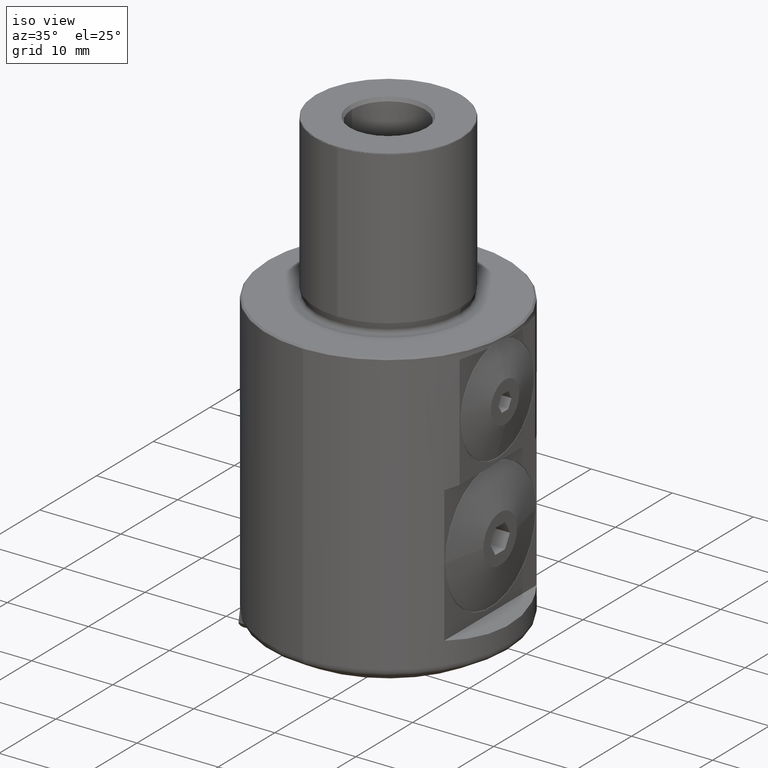
[diagram: clean part render]
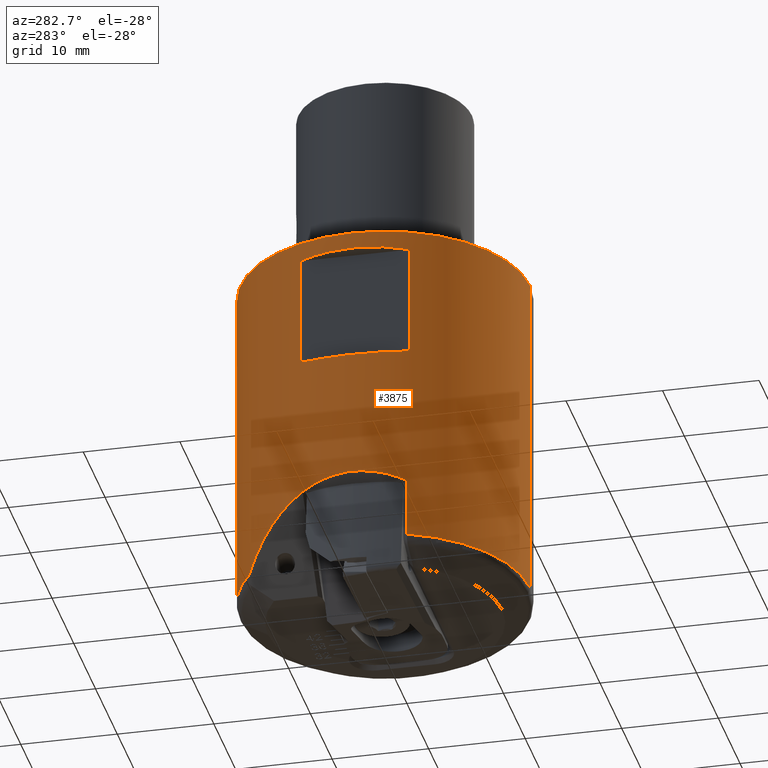
[diagram: tour spotlight — one face highlighted and labeled with its STEP entity id]
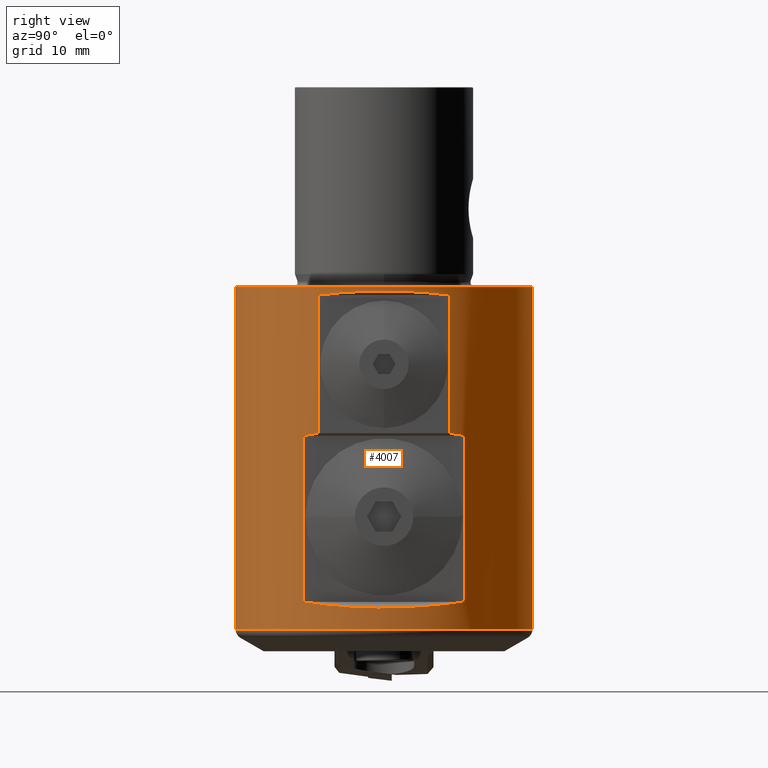
[diagram: tour spotlight — one face highlighted and labeled with its STEP entity id]
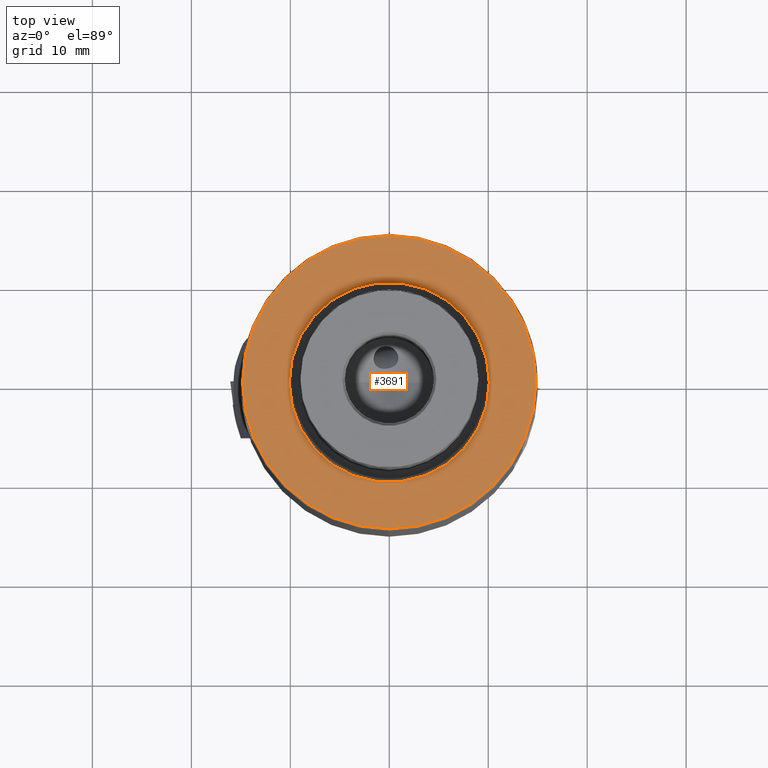
[diagram: tour spotlight — one face highlighted and labeled with its STEP entity id]
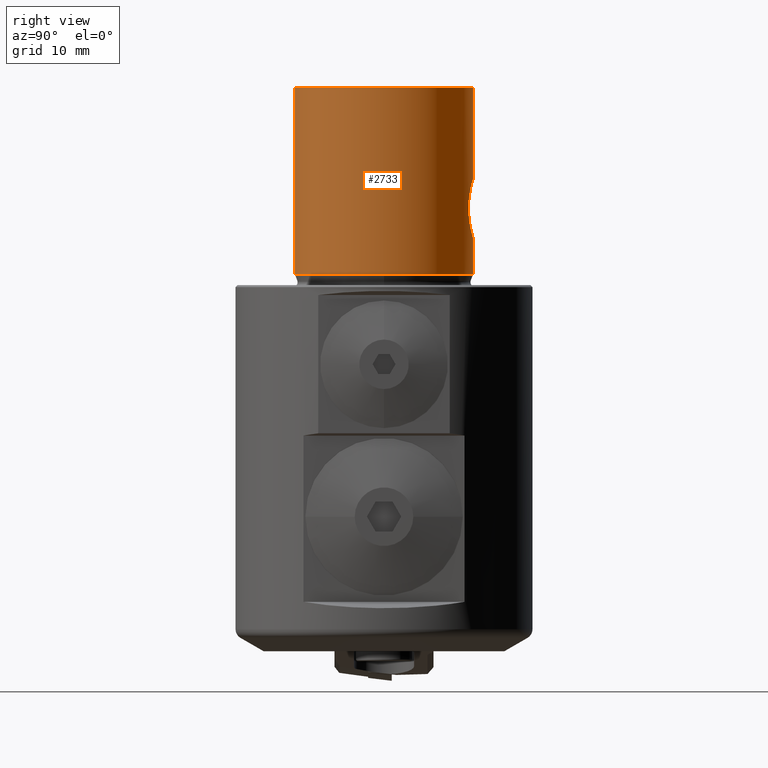
[diagram: tour spotlight — one face highlighted and labeled with its STEP entity id]
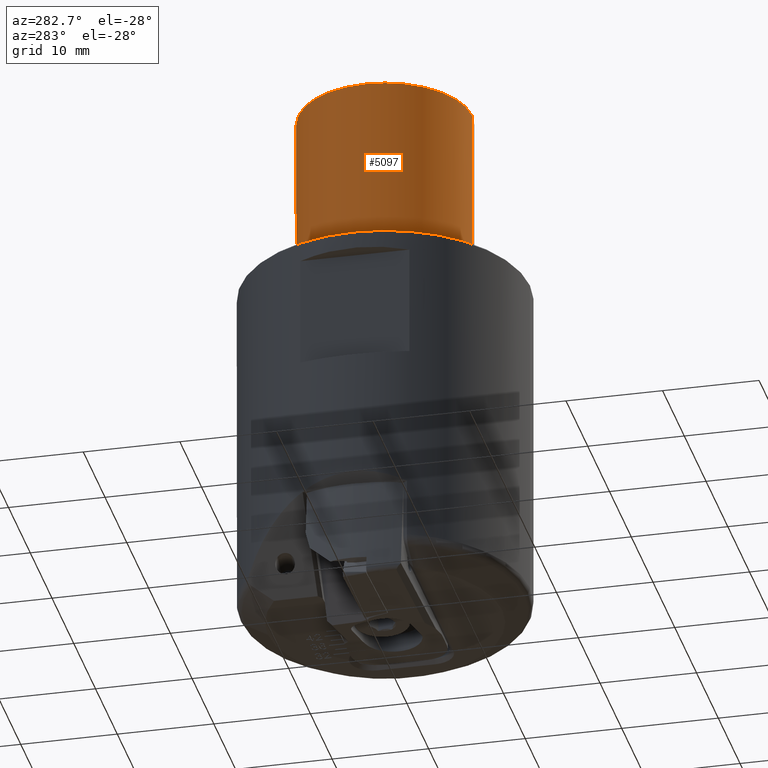
[diagram: tour spotlight — one face highlighted and labeled with its STEP entity id]
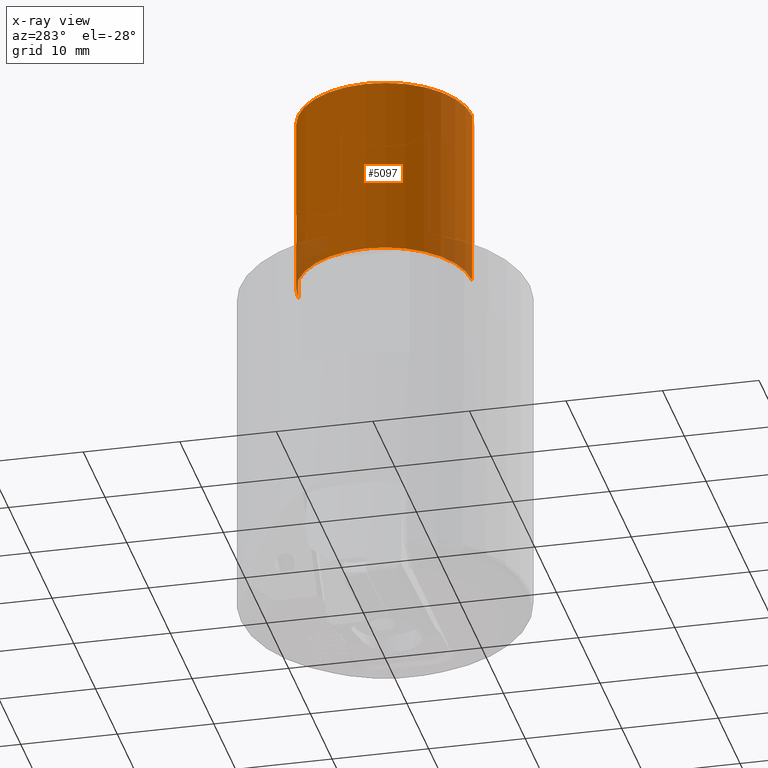
[diagram: x-ray of the same camera — body ghosted, this tour face saturated]
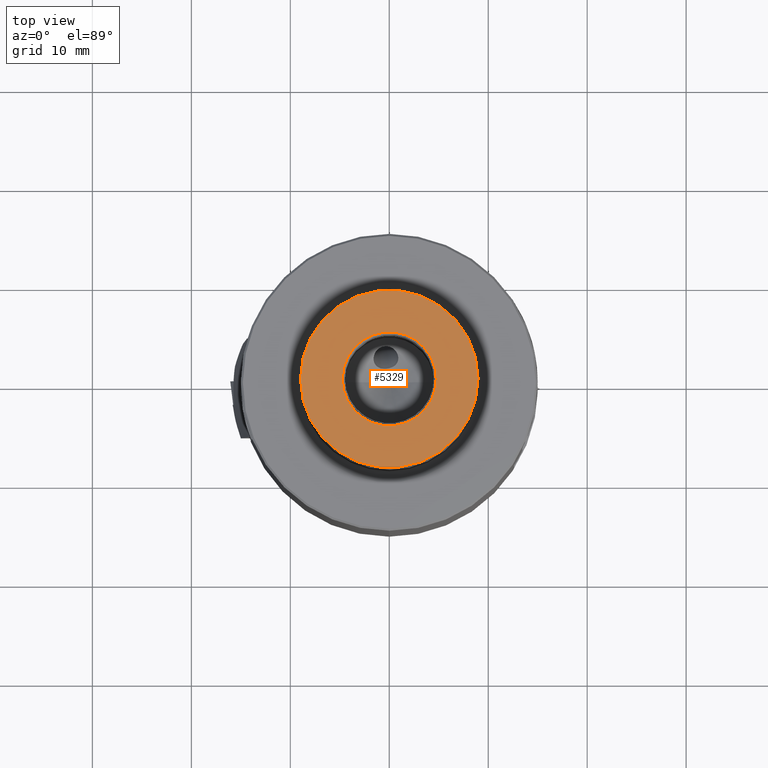
[diagram: tour spotlight — one face highlighted and labeled with its STEP entity id]
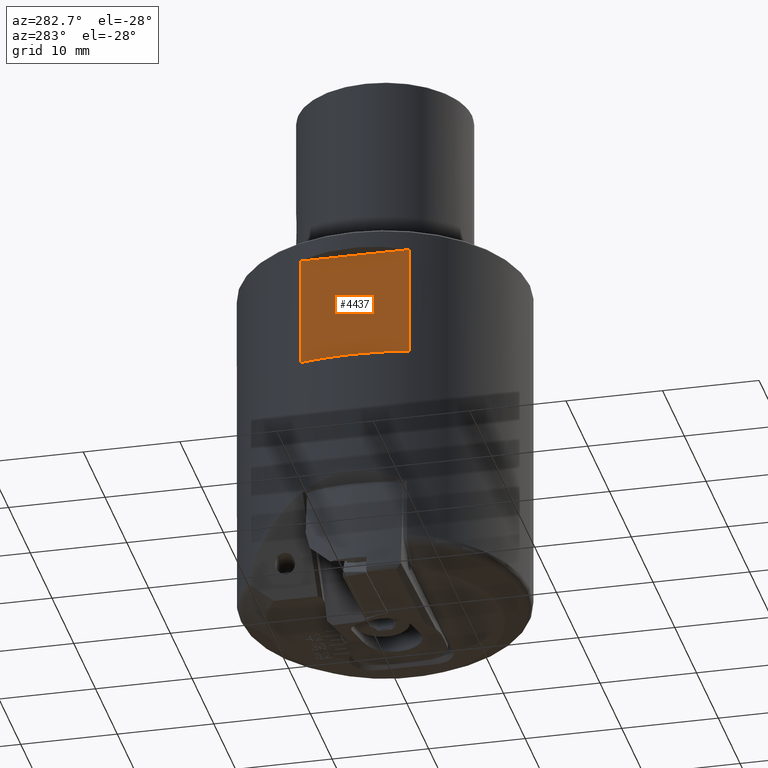
[diagram: tour spotlight — one face highlighted and labeled with its STEP entity id]
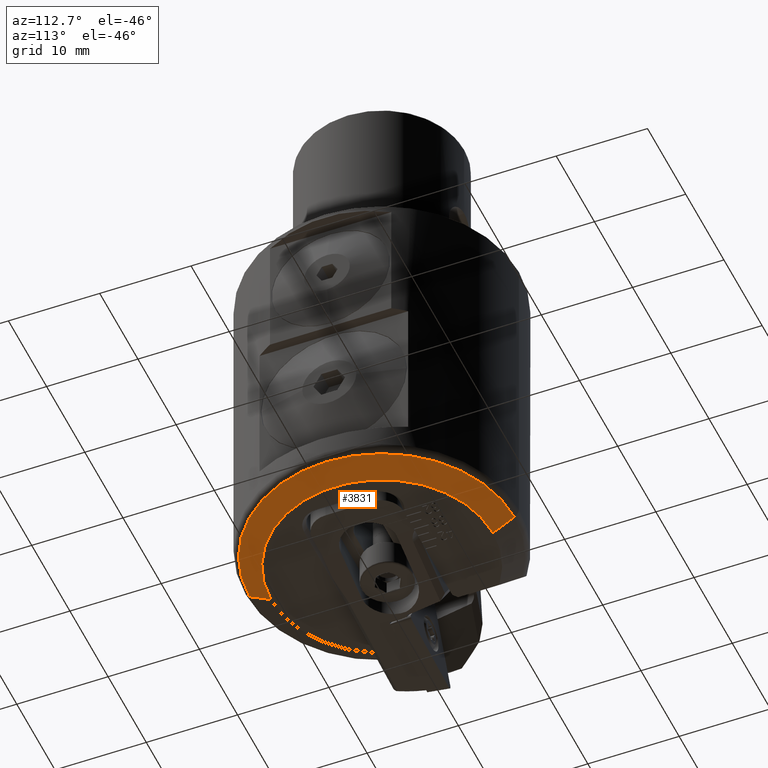
[diagram: tour spotlight — one face highlighted and labeled with its STEP entity id]
A machine part: a face-by-face anatomy tour. The part has 378 B-rep faces; the first image is the clean iso view, then the 8 largest visible faces are spotlighted one at a time (largest first), each with its STEP entity span.

Face 1 — auxiliary view, entity #3875. In plain terms, the highlighted cylindrical surface (partial cylindrical patch) has radius 15 mm, axis along (-0, -0, 1).
Definition (entity closure, byte-faithful):
#2251=EDGE_CURVE('NONE',#2585,#2761,#6210,.T.);
#2361=VERTEX_POINT('NONE',#6330);
#2405=VERTEX_POINT('NONE',#6378);
#2411=VERTEX_POINT('NONE',#6384);
#2445=EDGE_CURVE('NONE',#3675,#2405,#6426,.F.);
#2585=VERTEX_POINT('NONE',#6579);
#2727=EDGE_CURVE('NONE',#2405,#2585,#6740,.F.);
#2761=VERTEX_POINT('NONE',#6777);
#2983=VERTEX_POINT('NONE',#7022);
#3287=EDGE_CURVE('NONE',#4675,#5665,#7364,.T.);
#3675=VERTEX_POINT('NONE',#7800);
#3761=EDGE_CURVE('NONE',#2983,#4457,#7895,.F.);
#3861=EDGE_CURVE('NONE',#4457,#3675,#8004,.T.);
#3875=ADVANCED_FACE('NONE',(#8019,#8020),#8021,.T.);
#3983=EDGE_CURVE('NONE',#2761,#5155,#8140,.F.);
#4109=EDGE_CURVE('NONE',#2411,#2361,#8281,.T.);
#4457=VERTEX_POINT('NONE',#8665);
#4675=VERTEX_POINT('NONE',#8900);
#4925=EDGE_CURVE('NONE',#2983,#5155,#9173,.T.);
#5155=VERTEX_POINT('NONE',#9423);
#5161=EDGE_CURVE('NONE',#5665,#2411,#9429,.T.);
#5403=EDGE_CURVE('NONE',#2361,#4675,#9689,.T.);
#5665=VERTEX_POINT('NONE',#9976);
#6210=LINE('',#10909,#10910);
#6330=CARTESIAN_POINT('',(-13.9,-5.63826214360417,-13.8));
#6378=CARTESIAN_POINT('',(-13.9951543636778,-5.39774530121886,-34.7772014636199));
#6384=CARTESIAN_POINT('',(-13.9,5.63826214360418,-13.8));
#6426=LINE('',#11789,#11790);
#6579=CARTESIAN_POINT('',(-1.83697019872103E-015,-15.0,-34.7772014636199));
#6740=CIRCLE('',#12942,15.0);
#6777=CARTESIAN_POINT('',(-1.83697019872103E-015,-15.0,-0.199999999999989));
#7022=CARTESIAN_POINT('',(0.0,15.0,-34.7772014636199));
#7364=ELLIPSE('',#14526,15.5291427061513,15.0);
#7800=CARTESIAN_POINT('',(-13.9951543636778,-5.39774530121886,-28.6634996563359));
#7895=CIRCLE('',#15852,15.0);
#8004=ELLIPSE('',#16155,23.3358574029061,15.0);
#8019=FACE_OUTER_BOUND('',#16175,.T.);
#8020=FACE_BOUND('',#16176,.T.);
#8021=CYLINDRICAL_SURFACE('',#16177,15.0);
#8140=CIRCLE('',#16510,15.0);
#8281=ELLIPSE('',#16890,15.5291427061513,15.0);
#8665=CARTESIAN_POINT('',(-8.86514943205791,12.0999638655363,-34.7772014636199));
#8900=CARTESIAN_POINT('',(-13.9,-5.63826214360418,-2.2));
#9173=LINE('',#19331,#19332);
#9423=CARTESIAN_POINT('',(0.0,15.0,-0.199999999999989));
#9429=LINE('',#20591,#20592);
#9689=LINE('',#21254,#21255);
#9976=CARTESIAN_POINT('',(-13.9,5.63826214360418,-2.2));
#10909=CARTESIAN_POINT('',(-1.83697019872103E-015,-15.0,21.2728418399496));
#10910=VECTOR('',#23132,1000.0);
#11789=CARTESIAN_POINT('',(-13.9951543636778,-5.39774530121886,21.2728418399496));
#11790=VECTOR('',#23375,1.0);
#12942=AXIS2_PLACEMENT_3D('',#23689,#23690,#23691);
#14526=AXIS2_PLACEMENT_3D('',#24314,#24315,#24316);
#15852=AXIS2_PLACEMENT_3D('',#24943,#24944,#24945);
#16155=AXIS2_PLACEMENT_3D('',#25064,#25065,#25066);
#16175=EDGE_LOOP('',(#25081,#25082,#25083,#25084,#25085,#25086,#25087));
#16176=EDGE_LOOP('',(#25088,#25089,#25090,#25091));
#16177=AXIS2_PLACEMENT_3D('',#25092,#25093,#25094);
#16510=AXIS2_PLACEMENT_3D('',#25212,#25213,#25214);
#16890=AXIS2_PLACEMENT_3D('',#25377,#25378,#25379);
#19331=CARTESIAN_POINT('',(0.0,15.0,21.2728418399496));
#19332=VECTOR('',#26249,1000.0);
#20591=CARTESIAN_POINT('',(-13.9,5.63826214360418,21.2728418399496));
#20592=VECTOR('',#26472,1.0);
#21254=CARTESIAN_POINT('',(-13.9,-5.63826214360418,21.2728418399496));
#21255=VECTOR('',#26692,1.0);
#23132=DIRECTION('',(0.0,-0.0,1.0));
#23375=DIRECTION('',(0.0,-0.0,1.0));
#23689=CARTESIAN_POINT('',(0.0,0.0,-34.7772014636199));
#23690=DIRECTION('',(0.0,0.0,-1.0));
#23691=DIRECTION('',(0.0,1.0,0.0));
#24314=CARTESIAN_POINT('',(0.0,0.0,-5.92449377479262));
#24315=DIRECTION('',(-0.258819045102522,0.0,-0.965925826289068));
#24316=DIRECTION('',(0.965925826289068,0.0,-0.258819045102522));
#24943=CARTESIAN_POINT('',(0.0,0.0,-34.7772014636199));
#24944=DIRECTION('',(0.0,0.0,-1.0));
#24945=DIRECTION('',(0.0,1.0,0.0));
#25064=CARTESIAN_POINT('',(0.0,0.0,-45.3422751481594));
#25065=DIRECTION('',(0.766044443118977,-0.0,0.64278760968654));
#25066=DIRECTION('',(0.64278760968654,0.0,-0.766044443118977));
#25081=ORIENTED_EDGE('',*,*,#2727,.T.);
#25082=ORIENTED_EDGE('',*,*,#2251,.T.);
#25083=ORIENTED_EDGE('',*,*,#3983,.T.);
#25084=ORIENTED_EDGE('',*,*,#4925,.F.);
#25085=ORIENTED_EDGE('',*,*,#3761,.T.);
#25086=ORIENTED_EDGE('',*,*,#3861,.T.);
#25087=ORIENTED_EDGE('',*,*,#2445,.T.);
#25088=ORIENTED_EDGE('',*,*,#4109,.F.);
#25089=ORIENTED_EDGE('',*,*,#5161,.F.);
#25090=ORIENTED_EDGE('',*,*,#3287,.F.);
#25091=ORIENTED_EDGE('',*,*,#5403,.F.);
#25092=CARTESIAN_POINT('',(0.0,0.0,21.2728418399496));
#25093=DIRECTION('',(-0.0,-0.0,1.0));
#25094=DIRECTION('',(0.0,1.0,0.0));
#25212=CARTESIAN_POINT('',(0.0,0.0,-0.199999999999989));
#25213=DIRECTION('',(0.0,-0.0,1.0));
#25214=DIRECTION('',(0.0,1.0,0.0));
#25377=CARTESIAN_POINT('',(0.0,0.0,-10.0755062252074));
#25378=DIRECTION('',(-0.258819045102522,0.0,0.965925826289068));
#25379=DIRECTION('',(0.965925826289068,0.0,0.258819045102522));
#26249=DIRECTION('',(0.0,-0.0,1.0));
#26472=DIRECTION('',(0.0,0.0,-1.0));
#26692=DIRECTION('',(0.0,-0.0,1.0));

Face 2 — right view, entity #4007. In plain terms, the highlighted cylindrical surface (partial cylindrical patch) has radius 15 mm, axis along (-0, -0, 1).
Definition (entity closure, byte-faithful):
#2181=VERTEX_POINT('NONE',#6135);
#2251=EDGE_CURVE('NONE',#2585,#2761,#6210,.T.);
#2271=VERTEX_POINT('NONE',#6232);
#2459=EDGE_CURVE('NONE',#2585,#2983,#6442,.F.);
#2585=VERTEX_POINT('NONE',#6579);
#2745=EDGE_CURVE('NONE',#5155,#2761,#6760,.T.);
#2761=VERTEX_POINT('NONE',#6777);
#2805=EDGE_CURVE('NONE',#5701,#4555,#6826,.T.);
#2901=VERTEX_POINT('NONE',#6935);
#2983=VERTEX_POINT('NONE',#7022);
#3063=EDGE_CURVE('NONE',#4555,#2181,#7110,.T.);
#3269=VERTEX_POINT('NONE',#7345);
#3515=EDGE_CURVE('NONE',#5399,#3269,#7616,.T.);
#3713=EDGE_CURVE('NONE',#2901,#2271,#7844,.T.);
#3877=VERTEX_POINT('NONE',#8023);
#3935=EDGE_CURVE('NONE',#3269,#5701,#8088,.T.);
#4007=ADVANCED_FACE('NONE',(#8165,#8166),#8167,.T.);
#4413=EDGE_CURVE('NONE',#3877,#5399,#8614,.T.);
#4555=VERTEX_POINT('NONE',#8775);
#4583=EDGE_CURVE('NONE',#2271,#3877,#8804,.T.);
#4653=EDGE_CURVE('NONE',#2181,#2901,#8878,.T.);
#4925=EDGE_CURVE('NONE',#2983,#5155,#9173,.T.);
#5155=VERTEX_POINT('NONE',#9423);
#5399=VERTEX_POINT('NONE',#9685);
#5701=VERTEX_POINT('NONE',#10015);
#6135=CARTESIAN_POINT('',(13.45,6.64059485287275,-1.00000000000001));
#6210=LINE('',#10909,#10910);
#6232=CARTESIAN_POINT('',(13.45,-6.64059485287275,-14.9722431864335));
#6442=CIRCLE('',#11811,15.0);
#6579=CARTESIAN_POINT('',(-1.83697019872103E-015,-15.0,-34.7772014636199));
#6760=CIRCLE('',#12995,15.0);
#6777=CARTESIAN_POINT('',(-1.83697019872103E-015,-15.0,-0.199999999999989));
#6826=ELLIPSE('',#13179,15.5291427061512,15.0);
#6935=CARTESIAN_POINT('',(13.45,-6.64059485287275,-1.00000000000001));
#7022=CARTESIAN_POINT('',(0.0,15.0,-34.7772014636199));
#7110=LINE('',#13969,#13970);
#7345=CARTESIAN_POINT('',(12.6,8.13879597975033,-32.0));
#7616=ELLIPSE('',#14973,15.5291427061512,15.0);
#7844=LINE('',#15602,#15603);
#8023=CARTESIAN_POINT('',(12.6,-8.13879597975033,-15.2));
#8088=LINE('',#16281,#16282);
#8165=FACE_OUTER_BOUND('',#16575,.T.);
#8166=FACE_BOUND('',#16576,.T.);
#8167=CYLINDRICAL_SURFACE('',#16577,15.0);
#8614=LINE('',#17767,#17768);
#8775=CARTESIAN_POINT('',(13.45,6.64059485287275,-14.9722431864335));
#8804=ELLIPSE('',#18422,15.5291427061512,15.0);
#8878=ELLIPSE('',#18641,15.5291427061513,15.0);
#9173=LINE('',#19331,#19332);
#9423=CARTESIAN_POINT('',(0.0,15.0,-0.199999999999989));
#9685=CARTESIAN_POINT('',(12.6,-8.13879597975033,-32.0));
#10015=CARTESIAN_POINT('',(12.6,8.13879597975033,-15.2));
#10909=CARTESIAN_POINT('',(-1.83697019872103E-015,-15.0,21.2728418399496));
#10910=VECTOR('',#23132,1000.0);
#11811=AXIS2_PLACEMENT_3D('',#23394,#23395,#23396);
#12995=AXIS2_PLACEMENT_3D('',#23717,#23718,#23719);
#13179=AXIS2_PLACEMENT_3D('',#23780,#23781,#23782);
#13969=CARTESIAN_POINT('',(13.45,6.64059485287275,21.2728418399496));
#13970=VECTOR('',#24030,1.0);
#14973=AXIS2_PLACEMENT_3D('',#24578,#24579,#24580);
#15602=CARTESIAN_POINT('',(13.45,-6.64059485287275,21.2728418399496));
#15603=VECTOR('',#24912,1.0);
#16281=CARTESIAN_POINT('',(12.6,8.13879597975033,21.2728418399496));
#16282=VECTOR('',#25167,1.0);
#16575=EDGE_LOOP('',(#25228,#25229,#25230,#25231));
#16576=EDGE_LOOP('',(#25232,#25233,#25234,#25235,#25236,#25237,#25238,#25239));
#16577=AXIS2_PLACEMENT_3D('',#25240,#25241,#25242);
#17767=CARTESIAN_POINT('',(12.6,-8.13879597975033,21.2728418399496));
#17768=VECTOR('',#25686,1.0);
#18422=AXIS2_PLACEMENT_3D('',#25914,#25915,#25916);
#18641=AXIS2_PLACEMENT_3D('',#25980,#25981,#25982);
#19331=CARTESIAN_POINT('',(0.0,15.0,21.2728418399496));
#19332=VECTOR('',#26249,1000.0);
#23132=DIRECTION('',(0.0,-0.0,1.0));
#23394=CARTESIAN_POINT('',(0.0,0.0,-34.7772014636199));
#23395=DIRECTION('',(0.0,0.0,-1.0));
#23396=DIRECTION('',(0.0,1.0,0.0));
#23717=CARTESIAN_POINT('',(0.0,0.0,-0.199999999999989));
#23718=DIRECTION('',(0.0,0.0,-1.0));
#23719=DIRECTION('',(0.0,1.0,0.0));
#23780=CARTESIAN_POINT('',(0.0,0.0,-18.5761598246321));
#23781=DIRECTION('',(0.258819045102517,0.0,-0.965925826289069));
#23782=DIRECTION('',(0.965925826289069,0.0,0.258819045102517));
#24030=DIRECTION('',(0.0,-0.0,1.0));
#24578=CARTESIAN_POINT('',(0.0,0.0,-28.6238401753679));
#24579=DIRECTION('',(0.258819045102518,-0.0,0.965925826289069));
#24580=DIRECTION('',(0.965925826289069,0.0,-0.258819045102518));
#24912=DIRECTION('',(0.0,0.0,-1.0));
#25167=DIRECTION('',(0.0,-0.0,1.0));
#25228=ORIENTED_EDGE('',*,*,#2251,.F.);
#25229=ORIENTED_EDGE('',*,*,#2459,.T.);
#25230=ORIENTED_EDGE('',*,*,#4925,.T.);
#25231=ORIENTED_EDGE('',*,*,#2745,.T.);
#25232=ORIENTED_EDGE('',*,*,#4653,.F.);
#25233=ORIENTED_EDGE('',*,*,#3063,.F.);
#25234=ORIENTED_EDGE('',*,*,#2805,.F.);
#25235=ORIENTED_EDGE('',*,*,#3935,.F.);
#25236=ORIENTED_EDGE('',*,*,#3515,.F.);
#25237=ORIENTED_EDGE('',*,*,#4413,.F.);
#25238=ORIENTED_EDGE('',*,*,#4583,.F.);
#25239=ORIENTED_EDGE('',*,*,#3713,.F.);
#25240=CARTESIAN_POINT('',(0.0,0.0,21.2728418399496));
#25241=DIRECTION('',(-0.0,-0.0,1.0));
#25242=DIRECTION('',(0.0,1.0,0.0));
#25686=DIRECTION('',(0.0,0.0,-1.0));
#25914=CARTESIAN_POINT('',(0.0,0.0,-18.5761598246321));
#25915=DIRECTION('',(0.258819045102517,0.0,-0.965925826289069));
#25916=DIRECTION('',(0.965925826289069,0.0,0.258819045102517));
#25980=CARTESIAN_POINT('',(0.0,0.0,-4.60391663819862));
#25981=DIRECTION('',(0.258819045102521,0.0,-0.965925826289068));
#25982=DIRECTION('',(0.965925826289068,0.0,0.258819045102521));
#26249=DIRECTION('',(0.0,-0.0,1.0));

Face 3 — top view, entity #3691. In plain terms, the highlighted planar face has unit normal (-0, 0, 1).
Definition (entity closure, byte-faithful):
#2409=EDGE_CURVE('NONE',#3907,#5841,#6382,.F.);
#2787=EDGE_CURVE('NONE',#4241,#5901,#6807,.F.);
#3691=ADVANCED_FACE('NONE',(#7816,#7817),#7818,.T.);
#3907=VERTEX_POINT('NONE',#8057);
#4241=VERTEX_POINT('NONE',#8427);
#4913=EDGE_CURVE('NONE',#5901,#4241,#9160,.F.);
#5199=EDGE_CURVE('NONE',#5841,#3907,#9469,.T.);
#5841=VERTEX_POINT('NONE',#10179);
#5901=VERTEX_POINT('NONE',#10250);
#6382=CIRCLE('',#11546,14.8);
#6807=CIRCLE('',#13117,10.1122364103074);
#7816=FACE_OUTER_BOUND('',#15560,.T.);
#7817=FACE_BOUND('',#15561,.T.);
#7818=PLANE('',#15562);
#8057=CARTESIAN_POINT('',(-1.82472373072956E-015,14.8,0.0));
#8427=CARTESIAN_POINT('',(-10.1122364103074,2.53182592722272E-014,0.0));
#9160=CIRCLE('',#19313,10.1122364103074);
#9469=CIRCLE('',#20655,14.8);
#10179=CARTESIAN_POINT('',(0.0,-14.8,0.0));
#10250=CARTESIAN_POINT('',(10.1122364103074,-2.40798674770167E-014,0.0));
#11546=AXIS2_PLACEMENT_3D('',#23301,#23302,#23303);
#13117=AXIS2_PLACEMENT_3D('',#23767,#23768,#23769);
#15560=EDGE_LOOP('',(#24875,#24876));
#15561=EDGE_LOOP('',(#24877,#24878));
#15562=AXIS2_PLACEMENT_3D('',#24879,#24880,#24881);
#19313=AXIS2_PLACEMENT_3D('',#26231,#26232,#26233);
#20655=AXIS2_PLACEMENT_3D('',#26497,#26498,#26499);
#23301=CARTESIAN_POINT('',(0.0,0.0,0.0));
#23302=DIRECTION('',(0.0,0.0,-1.0));
#23303=DIRECTION('',(0.0,-1.0,0.0));
#23767=CARTESIAN_POINT('',(0.0,0.0,0.0));
#23768=DIRECTION('',(0.0,0.0,-1.0));
#23769=DIRECTION('',(1.0,-2.38126033648423E-015,0.0));
#24875=ORIENTED_EDGE('',*,*,#5199,.T.);
#24876=ORIENTED_EDGE('',*,*,#2409,.T.);
#24877=ORIENTED_EDGE('',*,*,#4913,.F.);
#24878=ORIENTED_EDGE('',*,*,#2787,.F.);
#24879=CARTESIAN_POINT('',(-9.0,0.0,0.0));
#24880=DIRECTION('',(-0.0,0.0,1.0));
#24881=DIRECTION('',(0.0,1.0,0.0));
#26231=CARTESIAN_POINT('',(0.0,0.0,0.0));
#26232=DIRECTION('',(0.0,0.0,-1.0));
#26233=DIRECTION('',(1.0,-2.38126033648423E-015,0.0));
#26497=CARTESIAN_POINT('',(0.0,0.0,0.0));
#26498=DIRECTION('',(-0.0,0.0,1.0));
#26499=DIRECTION('',(0.0,-1.0,0.0));

Face 4 — right view, entity #2733. In plain terms, the highlighted cylindrical surface (partial cylindrical patch) has radius 9 mm, axis along (-0, -0, 1).
Definition (entity closure, byte-faithful):
#2163=EDGE_CURVE('NONE',#2951,#4939,#6115,.T.);
#2733=ADVANCED_FACE('NONE',(#6746),#6747,.T.);
#2951=VERTEX_POINT('NONE',#6987);
#2993=EDGE_CURVE('NONE',#5189,#3081,#7033,.T.);
#2997=VERTEX_POINT('NONE',#7037);
#3081=VERTEX_POINT('NONE',#7135);
#3243=VERTEX_POINT('NONE',#7317);
#3405=EDGE_CURVE('NONE',#5189,#4839,#7494,.T.);
#3723=EDGE_CURVE('NONE',#3243,#4945,#7854,.T.);
#3797=EDGE_CURVE('NONE',#4939,#2997,#7933,.T.);
#4839=VERTEX_POINT('NONE',#9078);
#4939=VERTEX_POINT('NONE',#9188);
#4945=VERTEX_POINT('NONE',#9194);
#5003=EDGE_CURVE('NONE',#2997,#4945,#9254,.T.);
#5189=VERTEX_POINT('NONE',#9459);
#5271=EDGE_CURVE('NONE',#4839,#3243,#9543,.T.);
#5837=EDGE_CURVE('NONE',#3081,#2951,#10175,.F.);
#6115=LINE('',#10745,#10746);
#6746=FACE_OUTER_BOUND('',#12952,.T.);
#6747=CYLINDRICAL_SURFACE('',#12953,9.0);
#6987=CARTESIAN_POINT('',(-1.10218211923262E-015,-9.0,1.11223641030745));
#7033=CIRCLE('',#13792,9.0);
#7037=CARTESIAN_POINT('',(9.0,-2.03291609091254E-014,19.9468172400786));
#7135=CARTESIAN_POINT('',(9.0,-2.1431343028358E-014,1.11223641030745));
#7317=CARTESIAN_POINT('',(2.13995487996499E-014,9.0,10.7209359976271));
#7494=LINE('',#14723,#14724);
#7854=LINE('',#15618,#15619);
#7933=CIRCLE('',#16021,9.0);
#9078=CARTESIAN_POINT('',(2.11081152556858E-014,9.0,4.77906400237291));
#9188=CARTESIAN_POINT('',(-1.10218211923262E-015,-9.0,19.9468172400786));
#9194=CARTESIAN_POINT('',(0.0,9.0,19.9468172400786));
#9254=CIRCLE('',#19955,9.0);
#9459=CARTESIAN_POINT('',(0.0,9.0,1.11223641030745));
#9543=B_SPLINE_CURVE_WITH_KNOTS('',3,(#20854,#20855,#20856,#20857,#20858,#20859,#20860,#20861,#20862,#20863,#20864,#20865,#20866,#20867,#20868,#20869,#20870,#20871,#20872,#20873,#20874,#20875,#20876,#20877,#20878,#20879,#20880,#20881,#20882,#20883,#20884,#20885,#20886,#20887,#20888,#20889,#20890,#20891,#20892,#20893,#20894,#20895,#20896,#20897,#20898,#20899,#20900),.UNSPECIFIED.,.F.,.F.,(4,2,2,2,2,2,2,2,2,2,2,3,2,2,2,2,2,2,2,2,2,2,4),(-6.09839004713031,-5.53746309407713,-4.97653614102395,-4.41560918797076,-3.86086567368898,-3.30612215940721,-2.75137864512543,-2.19663513084365,-1.64747634813273,-1.09831756542182,-0.549158782710911,0.0,0.549158782710911,1.09831756542182,1.64747634813273,2.19663513084364,2.75137864512542,3.3061221594072,3.86086567368898,4.41560918797076,4.97035270225254,5.52509621653432,6.0798397308161),.UNSPECIFIED.);
#10175=CIRCLE('',#22694,9.0);
#10745=CARTESIAN_POINT('',(-1.10218211923262E-015,-9.0,21.2728418399496));
#10746=VECTOR('',#23024,1000.0);
#12952=EDGE_LOOP('',(#23695,#23696,#23697,#23698,#23699,#23700,#23701,#23702));
#12953=AXIS2_PLACEMENT_3D('',#23703,#23704,#23705);
#13792=AXIS2_PLACEMENT_3D('',#23959,#23960,#23961);
#14723=CARTESIAN_POINT('',(0.0,9.0,21.2728418399496));
#14724=VECTOR('',#24452,1000.0);
#15618=CARTESIAN_POINT('',(0.0,9.0,21.2728418399496));
#15619=VECTOR('',#24915,1000.0);
#16021=AXIS2_PLACEMENT_3D('',#24966,#24967,#24968);
#19955=AXIS2_PLACEMENT_3D('',#26295,#26296,#26297);
#20854=CARTESIAN_POINT('',(-1.63213133726001,8.85077100019732,5.31553570212781));
#20855=CARTESIAN_POINT('',(-1.47580527669552,8.87959839415863,5.20143087259359));
#20856=CARTESIAN_POINT('',(-1.30547953150855,8.90664127257246,5.10186300155908));
#20857=CARTESIAN_POINT('',(-0.947563996988922,8.95179636510166,4.94100331983259));
#20858=CARTESIAN_POINT('',(-0.759626919124748,8.96990900683441,4.87956996715977));
#20859=CARTESIAN_POINT('',(-0.379335945834957,8.99402050739613,4.79858816413617));
#20860=CARTESIAN_POINT('',(-0.186975651017706,9.0,4.77906400237291));
#20861=CARTESIAN_POINT('',(0.184914504760614,9.0,4.77906400237291));
#20862=CARTESIAN_POINT('',(0.37524438430556,8.99415233837018,4.79816122163877));
#20863=CARTESIAN_POINT('',(0.751781925857846,8.97053000494442,4.87746892594293));
#20864=CARTESIAN_POINT('',(0.937995657829312,8.9527737400778,4.93765607169964));
#20865=CARTESIAN_POINT('',(1.2929714898665,8.90843522196903,5.09534589540155));
#20866=CARTESIAN_POINT('',(1.46207251146106,8.8818524826903,5.19298491203403));
#20867=CARTESIAN_POINT('',(1.77289960853137,8.82506580883834,5.41684914740461));
#20868=CARTESIAN_POINT('',(1.91462647421408,8.7949179159591,5.54308748112438));
#20869=CARTESIAN_POINT('',(2.16265020892845,8.73721876240284,5.80870951702016));
#20870=CARTESIAN_POINT('',(2.27789754022679,8.70759562139696,5.95714369545691));
#20871=CARTESIAN_POINT('',(2.48055257253442,8.65204586465807,6.27890451198617));
#20872=CARTESIAN_POINT('',(2.56797985618031,8.62617301957552,6.45222809689672));
#20873=CARTESIAN_POINT('',(2.70825283700295,8.58316655425427,6.81294697812097));
#20874=CARTESIAN_POINT('',(2.76120040009186,8.56604378424171,7.0006195531354));
#20875=CARTESIAN_POINT('',(2.83062790244828,8.54335293904784,7.37761747648744));
#20876=CARTESIAN_POINT('',(2.84709060645864,8.53780270787601,7.56694707242971));
#20877=CARTESIAN_POINT('',(2.84709060645864,8.53780270787601,7.75000000000001));
#20878=CARTESIAN_POINT('',(2.84709060645864,8.53780270787601,7.93305292757031));
#20879=CARTESIAN_POINT('',(2.83062790244828,8.54335293904784,8.12238252351259));
#20880=CARTESIAN_POINT('',(2.76120040009186,8.56604378424171,8.49938044686463));
#20881=CARTESIAN_POINT('',(2.70825283700295,8.58316655425427,8.68705302187905));
#20882=CARTESIAN_POINT('',(2.56797985618031,8.62617301957552,9.0477719031033));
#20883=CARTESIAN_POINT('',(2.48055257253442,8.65204586465807,9.22109548801386));
#20884=CARTESIAN_POINT('',(2.27789754022679,8.70759562139696,9.54285630454311));
#20885=CARTESIAN_POINT('',(2.16265020892845,8.73721876240284,9.69129048297986));
#20886=CARTESIAN_POINT('',(1.91462647421408,8.7949179159591,9.95691251887564));
#20887=CARTESIAN_POINT('',(1.77289960853137,8.82506580883834,10.0831508525954));
#20888=CARTESIAN_POINT('',(1.46207251146106,8.8818524826903,10.307015087966));
#20889=CARTESIAN_POINT('',(1.2929714898665,8.90843522196903,10.4046541045985));
#20890=CARTESIAN_POINT('',(0.937995657829312,8.9527737400778,10.5623439283004));
#20891=CARTESIAN_POINT('',(0.751781925857846,8.97053000494442,10.6225310740571));
#20892=CARTESIAN_POINT('',(0.37524438430556,8.99415233837018,10.7018387783612));
#20893=CARTESIAN_POINT('',(0.184914504760615,9.0,10.7209359976271));
#20894=CARTESIAN_POINT('',(-0.184914504760571,9.0,10.7209359976271));
#20895=CARTESIAN_POINT('',(-0.375244384305516,8.99415233837018,10.7018387783613));
#20896=CARTESIAN_POINT('',(-0.751781925857803,8.97053000494443,10.6225310740571));
#20897=CARTESIAN_POINT('',(-0.937995657829269,8.95277374007781,10.5623439283004));
#20898=CARTESIAN_POINT('',(-1.29297148986645,8.90843522196904,10.4046541045985));
#20899=CARTESIAN_POINT('',(-1.46207251146101,8.88185248269031,10.307015087966));
#20900=CARTESIAN_POINT('',(-1.61748605999617,8.85345914576433,10.1950829702807));
#22694=AXIS2_PLACEMENT_3D('',#27258,#27259,#27260);
#23024=DIRECTION('',(0.0,-0.0,1.0));
#23695=ORIENTED_EDGE('',*,*,#2163,.F.);
#23696=ORIENTED_EDGE('',*,*,#5837,.F.);
#23697=ORIENTED_EDGE('',*,*,#2993,.F.);
#23698=ORIENTED_EDGE('',*,*,#3405,.T.);
#23699=ORIENTED_EDGE('',*,*,#5271,.T.);
#23700=ORIENTED_EDGE('',*,*,#3723,.T.);
#23701=ORIENTED_EDGE('',*,*,#5003,.F.);
#23702=ORIENTED_EDGE('',*,*,#3797,.F.);
#23703=CARTESIAN_POINT('',(0.0,0.0,21.2728418399496));
#23704=DIRECTION('',(-0.0,-0.0,1.0));
#23705=DIRECTION('',(0.0,1.0,0.0));
#23959=CARTESIAN_POINT('',(0.0,0.0,1.11223641030745));
#23960=DIRECTION('',(0.0,0.0,-1.0));
#23961=DIRECTION('',(0.0,1.0,0.0));
#24452=DIRECTION('',(0.0,-0.0,1.0));
#24915=DIRECTION('',(0.0,-0.0,1.0));
#24966=CARTESIAN_POINT('',(0.0,0.0,19.9468172400786));
#24967=DIRECTION('',(0.0,-0.0,1.0));
#24968=DIRECTION('',(0.0,1.0,0.0));
#26295=CARTESIAN_POINT('',(0.0,0.0,19.9468172400786));
#26296=DIRECTION('',(0.0,-0.0,1.0));
#26297=DIRECTION('',(0.0,1.0,0.0));
#27258=CARTESIAN_POINT('',(0.0,0.0,1.11223641030745));
#27259=DIRECTION('',(0.0,-0.0,1.0));
#27260=DIRECTION('',(0.0,1.0,0.0));

Face 5 — auxiliary view, entity #5097. An x-ray twin of the same camera follows (body ghosted, this face saturated) — the face is partly hidden behind the body. In plain terms, the highlighted cylindrical surface (partial cylindrical patch) has radius 9 mm, axis along (-0, -0, 1).
Definition (entity closure, byte-faithful):
#2163=EDGE_CURVE('NONE',#2951,#4939,#6115,.T.);
#2497=VERTEX_POINT('NONE',#6485);
#2917=EDGE_CURVE('NONE',#4945,#2497,#6951,.F.);
#2951=VERTEX_POINT('NONE',#6987);
#3171=VERTEX_POINT('NONE',#7237);
#3243=VERTEX_POINT('NONE',#7317);
#3405=EDGE_CURVE('NONE',#5189,#4839,#7494,.T.);
#3723=EDGE_CURVE('NONE',#3243,#4945,#7854,.T.);
#4473=EDGE_CURVE('NONE',#3171,#5189,#8681,.T.);
#4803=EDGE_CURVE('NONE',#2497,#4939,#9039,.F.);
#4839=VERTEX_POINT('NONE',#9078);
#4939=VERTEX_POINT('NONE',#9188);
#4945=VERTEX_POINT('NONE',#9194);
#5097=ADVANCED_FACE('NONE',(#9357),#9358,.T.);
#5189=VERTEX_POINT('NONE',#9459);
#5257=EDGE_CURVE('NONE',#3243,#4839,#9528,.T.);
#5323=EDGE_CURVE('NONE',#2951,#3171,#9601,.F.);
#6115=LINE('',#10745,#10746);
#6485=CARTESIAN_POINT('',(-9.0,2.1431343028358E-014,19.9468172400786));
#6951=CIRCLE('',#13612,9.0);
#6987=CARTESIAN_POINT('',(-1.10218211923262E-015,-9.0,1.11223641030745));
#7237=CARTESIAN_POINT('',(-9.0,2.25335251475906E-014,1.11223641030745));
#7317=CARTESIAN_POINT('',(2.13995487996499E-014,9.0,10.7209359976271));
#7494=LINE('',#14723,#14724);
#7854=LINE('',#15618,#15619);
#8681=CIRCLE('',#18003,9.0);
#9039=CIRCLE('',#18999,9.0);
#9078=CARTESIAN_POINT('',(2.11081152556858E-014,9.0,4.77906400237291));
#9188=CARTESIAN_POINT('',(-1.10218211923262E-015,-9.0,19.9468172400786));
#9194=CARTESIAN_POINT('',(0.0,9.0,19.9468172400786));
#9357=FACE_OUTER_BOUND('',#20225,.T.);
#9358=CYLINDRICAL_SURFACE('',#20226,9.0);
#9459=CARTESIAN_POINT('',(0.0,9.0,1.11223641030745));
#9528=B_SPLINE_CURVE_WITH_KNOTS('',3,(#20790,#20791,#20792,#20793,#20794,#20795,#20796,#20797,#20798,#20799,#20800,#20801,#20802,#20803,#20804,#20805,#20806,#20807,#20808,#20809,#20810,#20811,#20812,#20813,#20814,#20815,#20816,#20817,#20818,#20819,#20820,#20821,#20822,#20823,#20824,#20825,#20826,#20827,#20828,#20829,#20830,#20831,#20832,#20833,#20834,#20835),.UNSPECIFIED.,.F.,.F.,(4,2,2,2,2,2,2,2,2,2,2,2,2,2,2,2,2,2,2,2,2,2,4),(2.75137864512542,3.3061221594072,3.86086567368898,4.41560918797076,4.97035270225254,5.52509621653432,6.0798397308161,6.63458324509787,7.18374202780879,7.7329008105197,8.28205959323061,8.83121837594152,9.37425259960616,9.9172868232708,10.4603210469354,11.0033552706001,11.5642822236533,12.1252091767064,12.6861361297596,13.2470630828128,13.8018065970946,14.3565501113764,14.9112936256581),.UNSPECIFIED.);
#9601=CIRCLE('',#21102,9.0);
#10745=CARTESIAN_POINT('',(-1.10218211923262E-015,-9.0,21.2728418399496));
#10746=VECTOR('',#23024,1000.0);
#13612=AXIS2_PLACEMENT_3D('',#23883,#23884,#23885);
#14723=CARTESIAN_POINT('',(0.0,9.0,21.2728418399496));
#14724=VECTOR('',#24452,1000.0);
#15618=CARTESIAN_POINT('',(0.0,9.0,21.2728418399496));
#15619=VECTOR('',#24915,1000.0);
#18003=AXIS2_PLACEMENT_3D('',#25758,#25759,#25760);
#18999=AXIS2_PLACEMENT_3D('',#26118,#26119,#26120);
#20225=EDGE_LOOP('',(#26392,#26393,#26394,#26395,#26396,#26397,#26398,#26399));
#20226=AXIS2_PLACEMENT_3D('',#26400,#26401,#26402);
#20790=CARTESIAN_POINT('',(1.61748605999622,8.85345914576432,10.1950829702807));
#20791=CARTESIAN_POINT('',(1.46207251146106,8.8818524826903,10.307015087966));
#20792=CARTESIAN_POINT('',(1.2929714898665,8.90843522196903,10.4046541045985));
#20793=CARTESIAN_POINT('',(0.937995657829312,8.9527737400778,10.5623439283004));
#20794=CARTESIAN_POINT('',(0.751781925857846,8.97053000494442,10.6225310740571));
#20795=CARTESIAN_POINT('',(0.37524438430556,8.99415233837018,10.7018387783612));
#20796=CARTESIAN_POINT('',(0.184914504760615,9.0,10.7209359976271));
#20797=CARTESIAN_POINT('',(-0.184914504760571,9.0,10.7209359976271));
#20798=CARTESIAN_POINT('',(-0.375244384305516,8.99415233837018,10.7018387783613));
#20799=CARTESIAN_POINT('',(-0.751781925857803,8.97053000494443,10.6225310740571));
#20800=CARTESIAN_POINT('',(-0.937995657829269,8.95277374007781,10.5623439283004));
#20801=CARTESIAN_POINT('',(-1.29297148986645,8.90843522196904,10.4046541045985));
#20802=CARTESIAN_POINT('',(-1.46207251146101,8.88185248269031,10.307015087966));
#20803=CARTESIAN_POINT('',(-1.77289960853133,8.82506580883834,10.0831508525954));
#20804=CARTESIAN_POINT('',(-1.91462647421404,8.79491791595911,9.95691251887564));
#20805=CARTESIAN_POINT('',(-2.16265020892841,8.73721876240285,9.69129048297986));
#20806=CARTESIAN_POINT('',(-2.27789754022674,8.70759562139697,9.54285630454311));
#20807=CARTESIAN_POINT('',(-2.48055257253438,8.65204586465808,9.22109548801386));
#20808=CARTESIAN_POINT('',(-2.56797985618026,8.62617301957554,9.0477719031033));
#20809=CARTESIAN_POINT('',(-2.7082528370029,8.58316655425428,8.68705302187905));
#20810=CARTESIAN_POINT('',(-2.76120040009182,8.56604378424172,8.49938044686463));
#20811=CARTESIAN_POINT('',(-2.83062790244824,8.54335293904785,8.12238252351259));
#20812=CARTESIAN_POINT('',(-2.8470906064586,8.53780270787602,7.93305292757031));
#20813=CARTESIAN_POINT('',(-2.8470906064586,8.53780270787602,7.5689885921118));
#20814=CARTESIAN_POINT('',(-2.83099256381417,8.54322883592536,7.3817048670299));
#20815=CARTESIAN_POINT('',(-2.76303903493366,8.56544763165128,7.00856314762405));
#20816=CARTESIAN_POINT('',(-2.71119983406855,8.58222349789728,6.82270118747398));
#20817=CARTESIAN_POINT('',(-2.57380316853618,8.62442473069329,6.46516108381127));
#20818=CARTESIAN_POINT('',(-2.48814756453033,8.64983976322151,6.29321296995803));
#20819=CARTESIAN_POINT('',(-2.28956257047051,8.70451086899491,5.97362204657927));
#20820=CARTESIAN_POINT('',(-2.17661453703767,8.73371492476901,5.82598192551488));
#20821=CARTESIAN_POINT('',(-1.9307841722833,8.79138971376555,5.55829642721289));
#20822=CARTESIAN_POINT('',(-1.7884573978245,8.821943606236,5.42964053166204));
#20823=CARTESIAN_POINT('',(-1.47580527669552,8.87959839415863,5.20143087259359));
#20824=CARTESIAN_POINT('',(-1.30547953150855,8.90664127257246,5.10186300155908));
#20825=CARTESIAN_POINT('',(-0.947563996988922,8.95179636510166,4.94100331983259));
#20826=CARTESIAN_POINT('',(-0.759626919124748,8.96990900683441,4.87956996715977));
#20827=CARTESIAN_POINT('',(-0.379335945834957,8.99402050739613,4.79858816413617));
#20828=CARTESIAN_POINT('',(-0.186975651017706,9.0,4.77906400237291));
#20829=CARTESIAN_POINT('',(0.184914504760614,9.0,4.77906400237291));
#20830=CARTESIAN_POINT('',(0.37524438430556,8.99415233837018,4.79816122163877));
#20831=CARTESIAN_POINT('',(0.751781925857846,8.97053000494442,4.87746892594293));
#20832=CARTESIAN_POINT('',(0.937995657829312,8.9527737400778,4.93765607169964));
#20833=CARTESIAN_POINT('',(1.2929714898665,8.90843522196903,5.09534589540155));
#20834=CARTESIAN_POINT('',(1.46207251146106,8.8818524826903,5.19298491203403));
#20835=CARTESIAN_POINT('',(1.61748605999622,8.85345914576432,5.30491702971932));
#21102=AXIS2_PLACEMENT_3D('',#26616,#26617,#26618);
#23024=DIRECTION('',(0.0,-0.0,1.0));
#23883=CARTESIAN_POINT('',(0.0,0.0,19.9468172400786));
#23884=DIRECTION('',(0.0,0.0,-1.0));
#23885=DIRECTION('',(0.0,1.0,0.0));
#24452=DIRECTION('',(0.0,-0.0,1.0));
#24915=DIRECTION('',(0.0,-0.0,1.0));
#25758=CARTESIAN_POINT('',(0.0,0.0,1.11223641030745));
#25759=DIRECTION('',(0.0,0.0,-1.0));
#25760=DIRECTION('',(0.0,1.0,0.0));
#26118=CARTESIAN_POINT('',(0.0,0.0,19.9468172400786));
#26119=DIRECTION('',(0.0,0.0,-1.0));
#26120=DIRECTION('',(0.0,1.0,0.0));
#26392=ORIENTED_EDGE('',*,*,#5323,.F.);
#26393=ORIENTED_EDGE('',*,*,#2163,.T.);
#26394=ORIENTED_EDGE('',*,*,#4803,.F.);
#26395=ORIENTED_EDGE('',*,*,#2917,.F.);
#26396=ORIENTED_EDGE('',*,*,#3723,.F.);
#26397=ORIENTED_EDGE('',*,*,#5257,.T.);
#26398=ORIENTED_EDGE('',*,*,#3405,.F.);
#26399=ORIENTED_EDGE('',*,*,#4473,.F.);
#26400=CARTESIAN_POINT('',(0.0,0.0,21.2728418399496));
#26401=DIRECTION('',(-0.0,-0.0,1.0));
#26402=DIRECTION('',(0.0,1.0,0.0));
#26616=CARTESIAN_POINT('',(0.0,0.0,1.11223641030745));
#26617=DIRECTION('',(0.0,-0.0,1.0));
#26618=DIRECTION('',(0.0,1.0,0.0));

Face 6 — top view, entity #5329. In plain terms, the highlighted planar face has unit normal (0, 0, -1).
Definition (entity closure, byte-faithful):
#2465=VERTEX_POINT('NONE',#6448);
#3185=VERTEX_POINT('NONE',#7252);
#3327=VERTEX_POINT('NONE',#7407);
#3409=EDGE_CURVE('NONE',#3327,#2465,#7498,.T.);
#3905=VERTEX_POINT('NONE',#8055);
#5141=EDGE_CURVE('NONE',#3185,#3905,#9409,.F.);
#5201=EDGE_CURVE('NONE',#3905,#3185,#9471,.T.);
#5329=ADVANCED_FACE('NONE',(#9607,#9608),#9609,.F.);
#5853=EDGE_CURVE('NONE',#2465,#3327,#10191,.T.);
#6448=CARTESIAN_POINT('',(-8.96929491924311,2.13947846328906E-014,20.0));
#7252=CARTESIAN_POINT('',(4.75,-1.13109865983001E-014,20.0));
#7407=CARTESIAN_POINT('',(8.96929491924311,-2.02944826576013E-014,20.0));
#7498=CIRCLE('',#14729,8.96929491924311);
#8055=CARTESIAN_POINT('',(-4.75,1.18926938278951E-014,20.0));
#9409=CIRCLE('',#20551,4.74999999999999);
#9471=CIRCLE('',#20658,4.74999999999999);
#9607=FACE_OUTER_BOUND('',#21114,.T.);
#9608=FACE_BOUND('',#21115,.T.);
#9609=PLANE('',#21116);
#10191=CIRCLE('',#22716,8.96929491924311);
#14729=AXIS2_PLACEMENT_3D('',#24453,#24454,#24455);
#20551=AXIS2_PLACEMENT_3D('',#26464,#26465,#26466);
#20658=AXIS2_PLACEMENT_3D('',#26500,#26501,#26502);
#21114=EDGE_LOOP('',(#26620,#26621));
#21115=EDGE_LOOP('',(#26622,#26623));
#21116=AXIS2_PLACEMENT_3D('',#26624,#26625,#26626);
#22716=AXIS2_PLACEMENT_3D('',#27266,#27267,#27268);
#24453=CARTESIAN_POINT('',(0.0,0.0,20.0));
#24454=DIRECTION('',(0.0,0.0,1.0));
#24455=DIRECTION('',(-1.0,2.38126033648423E-015,0.0));
#26464=CARTESIAN_POINT('',(0.0,0.0,20.0));
#26465=DIRECTION('',(0.0,0.0,-1.0));
#26466=DIRECTION('',(1.0,-2.38126033648422E-015,0.0));
#26500=CARTESIAN_POINT('',(0.0,0.0,20.0));
#26501=DIRECTION('',(-0.0,0.0,1.0));
#26502=DIRECTION('',(1.0,-2.38126033648422E-015,0.0));
#26620=ORIENTED_EDGE('',*,*,#5853,.T.);
#26621=ORIENTED_EDGE('',*,*,#3409,.T.);
#26622=ORIENTED_EDGE('',*,*,#5141,.F.);
#26623=ORIENTED_EDGE('',*,*,#5201,.F.);
#26624=CARTESIAN_POINT('',(0.0,0.0,20.0));
#26625=DIRECTION('',(0.0,0.0,-1.0));
#26626=DIRECTION('',(-1.0,0.0,0.0));
#27266=CARTESIAN_POINT('',(0.0,0.0,20.0));
#27267=DIRECTION('',(0.0,0.0,1.0));
#27268=DIRECTION('',(-1.0,2.38126033648423E-015,0.0));

Face 7 — auxiliary view, entity #4437. In plain terms, the highlighted planar face has unit normal (1, 0, 0).
Definition (entity closure, byte-faithful):
#2361=VERTEX_POINT('NONE',#6330);
#2411=VERTEX_POINT('NONE',#6384);
#4437=ADVANCED_FACE('NONE',(#8642),#8643,.F.);
#4675=VERTEX_POINT('NONE',#8900);
#4677=EDGE_CURVE('NONE',#4675,#5665,#8902,.F.);
#5065=EDGE_CURVE('NONE',#2361,#2411,#9324,.F.);
#5161=EDGE_CURVE('NONE',#5665,#2411,#9429,.T.);
#5403=EDGE_CURVE('NONE',#2361,#4675,#9689,.T.);
#5665=VERTEX_POINT('NONE',#9976);
#6330=CARTESIAN_POINT('',(-13.9,-5.63826214360417,-13.8));
#6384=CARTESIAN_POINT('',(-13.9,5.63826214360418,-13.8));
#8642=FACE_OUTER_BOUND('',#17937,.T.);
#8643=PLANE('',#17938);
#8900=CARTESIAN_POINT('',(-13.9,-5.63826214360418,-2.2));
#8902=LINE('',#18691,#18692);
#9324=LINE('',#20161,#20162);
#9429=LINE('',#20591,#20592);
#9689=LINE('',#21254,#21255);
#9976=CARTESIAN_POINT('',(-13.9,5.63826214360418,-2.2));
#17937=EDGE_LOOP('',(#25719,#25720,#25721,#25722));
#17938=AXIS2_PLACEMENT_3D('',#25723,#25724,#25725);
#18691=CARTESIAN_POINT('',(-13.9,-15.0,-2.2));
#18692=VECTOR('',#25991,1.0);
#20161=CARTESIAN_POINT('',(-13.9,-15.0,-13.8));
#20162=VECTOR('',#26369,1.0);
#20591=CARTESIAN_POINT('',(-13.9,5.63826214360418,21.2728418399496));
#20592=VECTOR('',#26472,1.0);
#21254=CARTESIAN_POINT('',(-13.9,-5.63826214360418,21.2728418399496));
#21255=VECTOR('',#26692,1.0);
#25719=ORIENTED_EDGE('',*,*,#5161,.T.);
#25720=ORIENTED_EDGE('',*,*,#5065,.F.);
#25721=ORIENTED_EDGE('',*,*,#5403,.T.);
#25722=ORIENTED_EDGE('',*,*,#4677,.T.);
#25723=CARTESIAN_POINT('',(-13.9,-15.0,-2.2));
#25724=DIRECTION('',(1.0,0.0,0.0));
#25725=DIRECTION('',(0.0,-1.0,-0.0));
#25991=DIRECTION('',(0.0,-1.0,-0.0));
#26369=DIRECTION('',(0.0,-1.0,0.0));
#26472=DIRECTION('',(0.0,0.0,-1.0));
#26692=DIRECTION('',(0.0,-0.0,1.0));

Face 8 — auxiliary view, entity #3831. In plain terms, the highlighted conical surface has half-angle 60 deg.
Definition (entity closure, byte-faithful):
#2249=VERTEX_POINT('NONE',#6208);
#2815=EDGE_CURVE('NONE',#2249,#3281,#6837,.T.);
#2889=VERTEX_POINT('NONE',#6921);
#3281=VERTEX_POINT('NONE',#7358);
#3831=ADVANCED_FACE('NONE',(#7970),#7971,.T.);
#3901=EDGE_CURVE('NONE',#2249,#4403,#8051,.F.);
#4403=VERTEX_POINT('NONE',#8604);
#4869=EDGE_CURVE('NONE',#4403,#2889,#9111,.T.);
#5633=EDGE_CURVE('NONE',#2889,#3281,#9942,.T.);
#6208=CARTESIAN_POINT('',(-1.63184190498527E-015,-12.15,-37.0));
#6837=LINE('',#13193,#13194);
#6921=CARTESIAN_POINT('',(0.0,14.5,-35.6432268674044));
#7358=CARTESIAN_POINT('',(-1.77573785876366E-015,-14.5,-35.6432268674044));
#7970=FACE_OUTER_BOUND('',#16106,.T.);
#7971=CONICAL_SURFACE('',#16107,12.15,1.04719755119659);
#8051=CIRCLE('',#16223,12.15);
#8604=CARTESIAN_POINT('',(0.0,12.15,-37.0));
#9111=LINE('',#19122,#19123);
#9942=CIRCLE('',#22027,14.5);
#13193=CARTESIAN_POINT('',(-1.48794586096403E-015,-12.15,-37.0));
#13194=VECTOR('',#23795,1000.0);
#16106=EDGE_LOOP('',(#25008,#25009,#25010,#25011));
#16107=AXIS2_PLACEMENT_3D('',#25012,#25013,#25014);
#16223=AXIS2_PLACEMENT_3D('',#25131,#25132,#25133);
#19122=CARTESIAN_POINT('',(0.0,12.15,-37.0));
#19123=VECTOR('',#26179,1000.0);
#22027=AXIS2_PLACEMENT_3D('',#26988,#26989,#26990);
#23795=DIRECTION('',(-1.06057523872491E-016,-0.866025403784438,0.500000000000001));
#25008=ORIENTED_EDGE('',*,*,#2815,.F.);
#25009=ORIENTED_EDGE('',*,*,#3901,.T.);
#25010=ORIENTED_EDGE('',*,*,#4869,.T.);
#25011=ORIENTED_EDGE('',*,*,#5633,.T.);
#25012=CARTESIAN_POINT('',(0.0,0.0,-37.0));
#25013=DIRECTION('',(-0.0,-0.0,1.0));
#25014=DIRECTION('',(0.0,1.0,0.0));
#25131=CARTESIAN_POINT('',(0.0,0.0,-37.0));
#25132=DIRECTION('',(0.0,0.0,-1.0));
#25133=DIRECTION('',(0.0,1.0,0.0));
#26179=DIRECTION('',(0.0,0.866025403784438,0.500000000000001));
#26988=CARTESIAN_POINT('',(0.0,0.0,-35.6432268674044));
#26989=DIRECTION('',(0.0,0.0,-1.0));
#26990=DIRECTION('',(0.0,1.0,0.0));